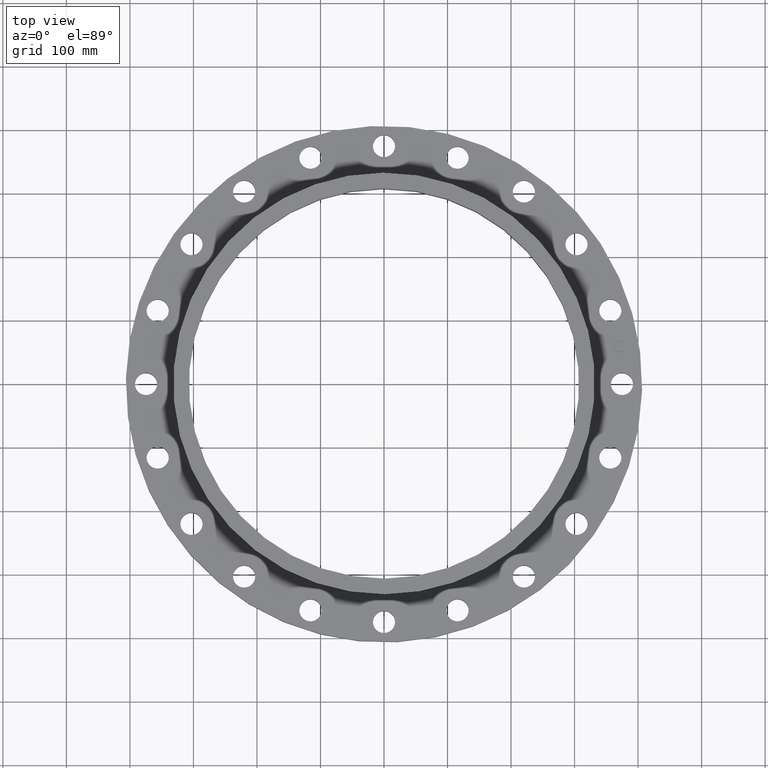
[diagram: clean part render]
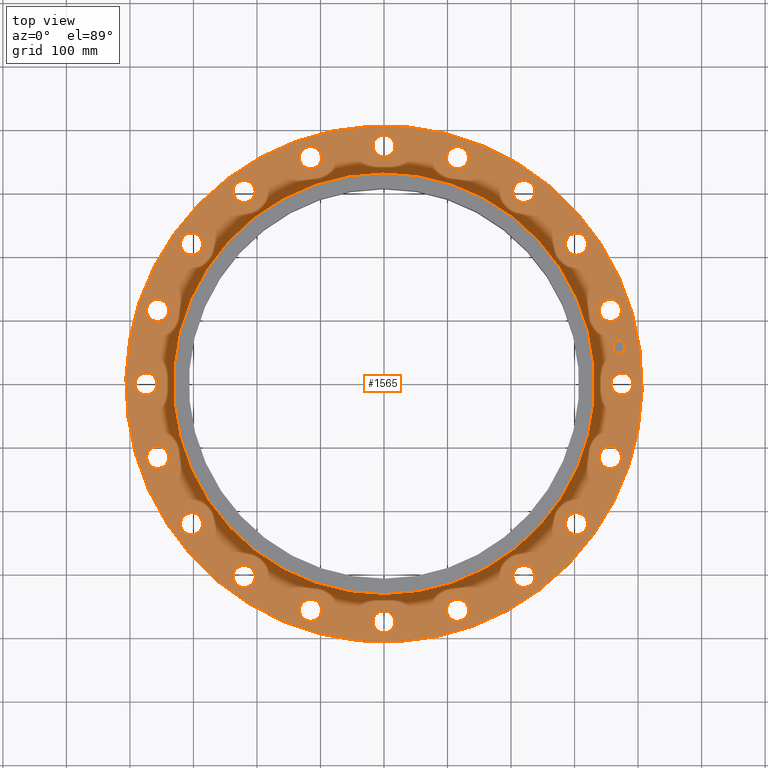
[diagram: same view with one face highlighted and labeled with its STEP entity id]
A machine part, top view. The second image highlights one B-rep face of the part: STEP entity #1565.
In plain terms, the highlighted planar face has unit normal (0, 0, 1).
Its self-contained STEP definition (entity closure, byte-faithful):
#65=AXIS2_PLACEMENT_3D('Circle Axis2P3D',#63,#64,$) ;
#82=AXIS2_PLACEMENT_3D('Circle Axis2P3D',#80,#81,$) ;
#108=AXIS2_PLACEMENT_3D('Circle Axis2P3D',#106,#107,$) ;
#134=AXIS2_PLACEMENT_3D('Circle Axis2P3D',#132,#133,$) ;
#255=AXIS2_PLACEMENT_3D('Circle Axis2P3D',#253,#254,$) ;
#267=AXIS2_PLACEMENT_3D('Circle Axis2P3D',#265,#266,$) ;
#658=AXIS2_PLACEMENT_3D('Circle Axis2P3D',#656,#657,$) ;
#670=AXIS2_PLACEMENT_3D('Circle Axis2P3D',#668,#669,$) ;
#701=AXIS2_PLACEMENT_3D('Circle Axis2P3D',#699,#700,$) ;
#713=AXIS2_PLACEMENT_3D('Circle Axis2P3D',#711,#712,$) ;
#744=AXIS2_PLACEMENT_3D('Circle Axis2P3D',#742,#743,$) ;
#756=AXIS2_PLACEMENT_3D('Circle Axis2P3D',#754,#755,$) ;
#787=AXIS2_PLACEMENT_3D('Circle Axis2P3D',#785,#786,$) ;
#799=AXIS2_PLACEMENT_3D('Circle Axis2P3D',#797,#798,$) ;
#830=AXIS2_PLACEMENT_3D('Circle Axis2P3D',#828,#829,$) ;
#842=AXIS2_PLACEMENT_3D('Circle Axis2P3D',#840,#841,$) ;
#873=AXIS2_PLACEMENT_3D('Circle Axis2P3D',#871,#872,$) ;
#885=AXIS2_PLACEMENT_3D('Circle Axis2P3D',#883,#884,$) ;
#916=AXIS2_PLACEMENT_3D('Circle Axis2P3D',#914,#915,$) ;
#928=AXIS2_PLACEMENT_3D('Circle Axis2P3D',#926,#927,$) ;
#959=AXIS2_PLACEMENT_3D('Circle Axis2P3D',#957,#958,$) ;
#971=AXIS2_PLACEMENT_3D('Circle Axis2P3D',#969,#970,$) ;
#1002=AXIS2_PLACEMENT_3D('Circle Axis2P3D',#1000,#1001,$) ;
#1014=AXIS2_PLACEMENT_3D('Circle Axis2P3D',#1012,#1013,$) ;
#1045=AXIS2_PLACEMENT_3D('Circle Axis2P3D',#1043,#1044,$) ;
#1057=AXIS2_PLACEMENT_3D('Circle Axis2P3D',#1055,#1056,$) ;
#1088=AXIS2_PLACEMENT_3D('Circle Axis2P3D',#1086,#1087,$) ;
#1100=AXIS2_PLACEMENT_3D('Circle Axis2P3D',#1098,#1099,$) ;
#1131=AXIS2_PLACEMENT_3D('Circle Axis2P3D',#1129,#1130,$) ;
#1143=AXIS2_PLACEMENT_3D('Circle Axis2P3D',#1141,#1142,$) ;
#1174=AXIS2_PLACEMENT_3D('Circle Axis2P3D',#1172,#1173,$) ;
#1186=AXIS2_PLACEMENT_3D('Circle Axis2P3D',#1184,#1185,$) ;
#1217=AXIS2_PLACEMENT_3D('Circle Axis2P3D',#1215,#1216,$) ;
#1229=AXIS2_PLACEMENT_3D('Circle Axis2P3D',#1227,#1228,$) ;
#1260=AXIS2_PLACEMENT_3D('Circle Axis2P3D',#1258,#1259,$) ;
#1272=AXIS2_PLACEMENT_3D('Circle Axis2P3D',#1270,#1271,$) ;
#1303=AXIS2_PLACEMENT_3D('Circle Axis2P3D',#1301,#1302,$) ;
#1315=AXIS2_PLACEMENT_3D('Circle Axis2P3D',#1313,#1314,$) ;
#1346=AXIS2_PLACEMENT_3D('Circle Axis2P3D',#1344,#1345,$) ;
#1358=AXIS2_PLACEMENT_3D('Circle Axis2P3D',#1356,#1357,$) ;
#1389=AXIS2_PLACEMENT_3D('Circle Axis2P3D',#1387,#1388,$) ;
#1401=AXIS2_PLACEMENT_3D('Circle Axis2P3D',#1399,#1400,$) ;
#1432=AXIS2_PLACEMENT_3D('Circle Axis2P3D',#1430,#1431,$) ;
#1444=AXIS2_PLACEMENT_3D('Circle Axis2P3D',#1442,#1443,$) ;
#1457=AXIS2_PLACEMENT_3D('Plane Axis2P3D',#1454,#1455,#1456) ;
#1549=AXIS2_PLACEMENT_3D('Circle Axis2P3D',#1547,#1548,$) ;
#1558=AXIS2_PLACEMENT_3D('Circle Axis2P3D',#1556,#1557,$) ;
#46=CARTESIAN_POINT('Vertex',(14.1466619888,0.329605057792,1.87500000001)) ;
#60=CARTESIAN_POINT('Vertex',(15.3533380114,-0.329605057792,1.87500000001)) ;
#63=CARTESIAN_POINT('Axis2P3D Location',(14.7500000001,0.,1.87500000001)) ;
#80=CARTESIAN_POINT('Axis2P3D Location',(14.7500000001,0.,1.87500000001)) ;
#103=CARTESIAN_POINT('Vertex',(-7.6708086177,14.0413209903,1.87500000001)) ;
#106=CARTESIAN_POINT('Axis2P3D Location',(0.,0.,1.87500000001)) ;
#110=CARTESIAN_POINT('Vertex',(7.6708086177,-14.0413209903,1.87500000001)) ;
#132=CARTESIAN_POINT('Axis2P3D Location',(0.,0.,1.87500000001)) ;
#243=CARTESIAN_POINT('Vertex',(-6.26249609804,11.4634222147,1.87500000001)) ;
#250=CARTESIAN_POINT('Vertex',(6.26249609804,-11.4634222147,1.87500000001)) ;
#253=CARTESIAN_POINT('Axis2P3D Location',(0.,0.,1.87500000001)) ;
#265=CARTESIAN_POINT('Axis2P3D Location',(0.,0.,1.87500000001)) ;
#646=CARTESIAN_POINT('Vertex',(13.3524215039,4.68503200622,1.87500000001)) ;
#653=CARTESIAN_POINT('Vertex',(14.7037457269,4.43096932788,1.87500000001)) ;
#656=CARTESIAN_POINT('Axis2P3D Location',(14.0280836154,4.55800066705,1.87500000001)) ;
#668=CARTESIAN_POINT('Axis2P3D Location',(14.0280836154,4.55800066705,1.87500000001)) ;
#689=CARTESIAN_POINT('Vertex',(11.2511529705,8.58185537934,1.87500000001)) ;
#696=CARTESIAN_POINT('Vertex',(12.6148483636,8.75780956335,1.87500000001)) ;
#699=CARTESIAN_POINT('Axis2P3D Location',(11.9330006671,8.66983247135,1.87500000001)) ;
#711=CARTESIAN_POINT('Axis2P3D Location',(11.9330006671,8.66983247135,1.87500000001)) ;
#732=CARTESIAN_POINT('Vertex',(8.04854319297,11.6386269546,1.87500000001)) ;
#739=CARTESIAN_POINT('Vertex',(9.29112174972,12.2273743795,1.87500000001)) ;
#742=CARTESIAN_POINT('Axis2P3D Location',(8.66983247135,11.9330006671,1.87500000001)) ;
#754=CARTESIAN_POINT('Axis2P3D Location',(8.66983247135,11.9330006671,1.87500000001)) ;
#775=CARTESIAN_POINT('Vertex',(4.05808593019,13.5561286325,1.87500000001)) ;
#782=CARTESIAN_POINT('Vertex',(5.05791540391,14.5000385983,1.87500000001)) ;
#785=CARTESIAN_POINT('Axis2P3D Location',(4.55800066705,14.0280836154,1.87500000001)) ;
#797=CARTESIAN_POINT('Axis2P3D Location',(4.55800066705,14.0280836154,1.87500000001)) ;
#818=CARTESIAN_POINT('Vertex',(-0.329605057792,14.1466619888,1.87500000001)) ;
#825=CARTESIAN_POINT('Vertex',(0.329605057792,15.3533380114,1.87500000001)) ;
#828=CARTESIAN_POINT('Axis2P3D Location',(4.17833493703E-015,14.7500000001,1.87500000001)) ;
#840=CARTESIAN_POINT('Axis2P3D Location',(4.17833493703E-015,14.7500000001,1.87500000001)) ;
#861=CARTESIAN_POINT('Vertex',(-4.68503200622,13.3524215039,1.87500000001)) ;
#868=CARTESIAN_POINT('Vertex',(-4.43096932788,14.7037457269,1.87500000001)) ;
#871=CARTESIAN_POINT('Axis2P3D Location',(-4.55800066705,14.0280836154,1.87500000001)) ;
#883=CARTESIAN_POINT('Axis2P3D Location',(-4.55800066705,14.0280836154,1.87500000001)) ;
#904=CARTESIAN_POINT('Vertex',(-8.58185537934,11.2511529705,1.87500000001)) ;
#911=CARTESIAN_POINT('Vertex',(-8.75780956335,12.6148483636,1.87500000001)) ;
#914=CARTESIAN_POINT('Axis2P3D Location',(-8.66983247135,11.9330006671,1.87500000001)) ;
#926=CARTESIAN_POINT('Axis2P3D Location',(-8.66983247135,11.9330006671,1.87500000001)) ;
#947=CARTESIAN_POINT('Vertex',(-11.6386269546,8.04854319297,1.87500000001)) ;
#954=CARTESIAN_POINT('Vertex',(-12.2273743795,9.29112174972,1.87500000001)) ;
#957=CARTESIAN_POINT('Axis2P3D Location',(-11.9330006671,8.66983247135,1.87500000001)) ;
#969=CARTESIAN_POINT('Axis2P3D Location',(-11.9330006671,8.66983247135,1.87500000001)) ;
#990=CARTESIAN_POINT('Vertex',(-13.5561286325,4.05808593019,1.87500000001)) ;
#997=CARTESIAN_POINT('Vertex',(-14.5000385983,5.05791540391,1.87500000001)) ;
#1000=CARTESIAN_POINT('Axis2P3D Location',(-14.0280836154,4.55800066705,1.87500000001)) ;
#1012=CARTESIAN_POINT('Axis2P3D Location',(-14.0280836154,4.55800066705,1.87500000001)) ;
#1033=CARTESIAN_POINT('Vertex',(-14.1466619888,-0.329605057792,1.87500000001)) ;
#1040=CARTESIAN_POINT('Vertex',(-15.3533380114,0.329605057792,1.87500000001)) ;
#1043=CARTESIAN_POINT('Axis2P3D Location',(-14.7500000001,8.35666987406E-015,1.87500000001)) ;
#1055=CARTESIAN_POINT('Axis2P3D Location',(-14.7500000001,8.35666987406E-015,1.87500000001)) ;
#1076=CARTESIAN_POINT('Vertex',(-13.3524215039,-4.68503200622,1.87500000001)) ;
#1083=CARTESIAN_POINT('Vertex',(-14.7037457269,-4.43096932788,1.87500000001)) ;
#1086=CARTESIAN_POINT('Axis2P3D Location',(-14.0280836154,-4.55800066705,1.87500000001)) ;
#1098=CARTESIAN_POINT('Axis2P3D Location',(-14.0280836154,-4.55800066705,1.87500000001)) ;
#1119=CARTESIAN_POINT('Vertex',(-11.2511529705,-8.58185537934,1.87500000001)) ;
#1126=CARTESIAN_POINT('Vertex',(-12.6148483636,-8.75780956335,1.87500000001)) ;
#1129=CARTESIAN_POINT('Axis2P3D Location',(-11.9330006671,-8.66983247135,1.87500000001)) ;
#1141=CARTESIAN_POINT('Axis2P3D Location',(-11.9330006671,-8.66983247135,1.87500000001)) ;
#1162=CARTESIAN_POINT('Vertex',(-8.04854319297,-11.6386269546,1.87500000001)) ;
#1169=CARTESIAN_POINT('Vertex',(-9.29112174972,-12.2273743795,1.87500000001)) ;
#1172=CARTESIAN_POINT('Axis2P3D Location',(-8.66983247135,-11.9330006671,1.87500000001)) ;
#1184=CARTESIAN_POINT('Axis2P3D Location',(-8.66983247135,-11.9330006671,1.87500000001)) ;
#1205=CARTESIAN_POINT('Vertex',(-4.05808593019,-13.5561286325,1.87500000001)) ;
#1212=CARTESIAN_POINT('Vertex',(-5.05791540391,-14.5000385983,1.87500000001)) ;
#1215=CARTESIAN_POINT('Axis2P3D Location',(-4.55800066705,-14.0280836154,1.87500000001)) ;
#1227=CARTESIAN_POINT('Axis2P3D Location',(-4.55800066705,-14.0280836154,1.87500000001)) ;
#1248=CARTESIAN_POINT('Vertex',(0.329605057792,-14.1466619888,1.87500000001)) ;
#1255=CARTESIAN_POINT('Vertex',(-0.329605057792,-15.3533380114,1.87500000001)) ;
#1258=CARTESIAN_POINT('Axis2P3D Location',(-1.58101627338E-014,-14.7500000001,1.87500000001)) ;
#1270=CARTESIAN_POINT('Axis2P3D Location',(-1.58101627338E-014,-14.7500000001,1.87500000001)) ;
#1291=CARTESIAN_POINT('Vertex',(4.68503200622,-13.3524215039,1.87500000001)) ;
#1298=CARTESIAN_POINT('Vertex',(4.43096932788,-14.7037457269,1.87500000001)) ;
#1301=CARTESIAN_POINT('Axis2P3D Location',(4.55800066705,-14.0280836154,1.87500000001)) ;
#1313=CARTESIAN_POINT('Axis2P3D Location',(4.55800066705,-14.0280836154,1.87500000001)) ;
#1334=CARTESIAN_POINT('Vertex',(8.58185537934,-11.2511529705,1.87500000001)) ;
#1341=CARTESIAN_POINT('Vertex',(8.75780956335,-12.6148483636,1.87500000001)) ;
#1344=CARTESIAN_POINT('Axis2P3D Location',(8.66983247135,-11.9330006671,1.87500000001)) ;
#1356=CARTESIAN_POINT('Axis2P3D Location',(8.66983247135,-11.9330006671,1.87500000001)) ;
#1377=CARTESIAN_POINT('Vertex',(11.6386269546,-8.04854319297,1.87500000001)) ;
#1384=CARTESIAN_POINT('Vertex',(12.2273743795,-9.29112174972,1.87500000001)) ;
#1387=CARTESIAN_POINT('Axis2P3D Location',(11.9330006671,-8.66983247135,1.87500000001)) ;
#1399=CARTESIAN_POINT('Axis2P3D Location',(11.9330006671,-8.66983247135,1.87500000001)) ;
#1420=CARTESIAN_POINT('Vertex',(13.5561286325,-4.05808593019,1.87500000001)) ;
#1427=CARTESIAN_POINT('Vertex',(14.5000385983,-5.05791540391,1.87500000001)) ;
#1430=CARTESIAN_POINT('Axis2P3D Location',(14.0280836154,-4.55800066705,1.87500000001)) ;
#1442=CARTESIAN_POINT('Axis2P3D Location',(14.0280836154,-4.55800066705,1.87500000001)) ;
#1454=CARTESIAN_POINT('Axis2P3D Location',(0.,13.0625000001,1.87500000001)) ;
#1547=CARTESIAN_POINT('Axis2P3D Location',(14.5684030238,2.30740835935,1.87500000001)) ;
#1551=CARTESIAN_POINT('Vertex',(14.5097400994,2.67779148708,1.87500000001)) ;
#1553=CARTESIAN_POINT('Vertex',(14.6270659482,1.93702523163,1.87500000001)) ;
#1556=CARTESIAN_POINT('Axis2P3D Location',(14.5684030238,2.30740835935,1.87500000001)) ;
#64=DIRECTION('Axis2P3D Direction',(0.,-0.,-0.0393700787402)) ;
#81=DIRECTION('Axis2P3D Direction',(0.,-0.,-0.0393700787402)) ;
#107=DIRECTION('Axis2P3D Direction',(0.,0.,0.0393700787402)) ;
#133=DIRECTION('Axis2P3D Direction',(0.,0.,0.0393700787402)) ;
#254=DIRECTION('Axis2P3D Direction',(0.,0.,0.0393700787402)) ;
#266=DIRECTION('Axis2P3D Direction',(0.,0.,0.0393700787402)) ;
#657=DIRECTION('Axis2P3D Direction',(0.,0.,-0.0393700787402)) ;
#669=DIRECTION('Axis2P3D Direction',(0.,0.,-0.0393700787402)) ;
#700=DIRECTION('Axis2P3D Direction',(0.,0.,-0.0393700787402)) ;
#712=DIRECTION('Axis2P3D Direction',(0.,0.,-0.0393700787402)) ;
#743=DIRECTION('Axis2P3D Direction',(0.,0.,-0.0393700787402)) ;
#755=DIRECTION('Axis2P3D Direction',(0.,0.,-0.0393700787402)) ;
#786=DIRECTION('Axis2P3D Direction',(0.,0.,-0.0393700787402)) ;
#798=DIRECTION('Axis2P3D Direction',(0.,0.,-0.0393700787402)) ;
#829=DIRECTION('Axis2P3D Direction',(0.,0.,-0.0393700787402)) ;
#841=DIRECTION('Axis2P3D Direction',(0.,0.,-0.0393700787402)) ;
#872=DIRECTION('Axis2P3D Direction',(0.,0.,-0.0393700787402)) ;
#884=DIRECTION('Axis2P3D Direction',(0.,0.,-0.0393700787402)) ;
#915=DIRECTION('Axis2P3D Direction',(0.,0.,-0.0393700787402)) ;
#927=DIRECTION('Axis2P3D Direction',(0.,0.,-0.0393700787402)) ;
#958=DIRECTION('Axis2P3D Direction',(0.,0.,-0.0393700787402)) ;
#970=DIRECTION('Axis2P3D Direction',(0.,0.,-0.0393700787402)) ;
#1001=DIRECTION('Axis2P3D Direction',(0.,0.,-0.0393700787402)) ;
#1013=DIRECTION('Axis2P3D Direction',(0.,0.,-0.0393700787402)) ;
#1044=DIRECTION('Axis2P3D Direction',(0.,0.,-0.0393700787402)) ;
#1056=DIRECTION('Axis2P3D Direction',(0.,0.,-0.0393700787402)) ;
#1087=DIRECTION('Axis2P3D Direction',(-0.,0.,-0.0393700787402)) ;
#1099=DIRECTION('Axis2P3D Direction',(-0.,0.,-0.0393700787402)) ;
#1130=DIRECTION('Axis2P3D Direction',(-0.,0.,-0.0393700787402)) ;
#1142=DIRECTION('Axis2P3D Direction',(-0.,0.,-0.0393700787402)) ;
#1173=DIRECTION('Axis2P3D Direction',(-0.,0.,-0.0393700787402)) ;
#1185=DIRECTION('Axis2P3D Direction',(-0.,0.,-0.0393700787402)) ;
#1216=DIRECTION('Axis2P3D Direction',(-0.,0.,-0.0393700787402)) ;
#1228=DIRECTION('Axis2P3D Direction',(-0.,0.,-0.0393700787402)) ;
#1259=DIRECTION('Axis2P3D Direction',(-0.,0.,-0.0393700787402)) ;
#1271=DIRECTION('Axis2P3D Direction',(-0.,0.,-0.0393700787402)) ;
#1302=DIRECTION('Axis2P3D Direction',(0.,-0.,-0.0393700787402)) ;
#1314=DIRECTION('Axis2P3D Direction',(0.,-0.,-0.0393700787402)) ;
#1345=DIRECTION('Axis2P3D Direction',(0.,-0.,-0.0393700787402)) ;
#1357=DIRECTION('Axis2P3D Direction',(0.,-0.,-0.0393700787402)) ;
#1388=DIRECTION('Axis2P3D Direction',(0.,-0.,-0.0393700787402)) ;
#1400=DIRECTION('Axis2P3D Direction',(0.,-0.,-0.0393700787402)) ;
#1431=DIRECTION('Axis2P3D Direction',(0.,-0.,-0.0393700787402)) ;
#1443=DIRECTION('Axis2P3D Direction',(0.,-0.,-0.0393700787402)) ;
#1455=DIRECTION('Axis2P3D Direction',(0.,0.,0.0393700787402)) ;
#1456=DIRECTION('Axis2P3D XDirection',(0.0393700787402,0.,0.)) ;
#1548=DIRECTION('Axis2P3D Direction',(0.,0.,0.0393700787402)) ;
#1557=DIRECTION('Axis2P3D Direction',(0.,0.,0.0393700787402)) ;
#1460=ORIENTED_EDGE('',*,*,#112,.T.) ;
#1461=ORIENTED_EDGE('',*,*,#136,.T.) ;
#1464=ORIENTED_EDGE('',*,*,#84,.F.) ;
#1465=ORIENTED_EDGE('',*,*,#67,.F.) ;
#1468=ORIENTED_EDGE('',*,*,#269,.F.) ;
#1469=ORIENTED_EDGE('',*,*,#257,.F.) ;
#1472=ORIENTED_EDGE('',*,*,#660,.F.) ;
#1473=ORIENTED_EDGE('',*,*,#672,.F.) ;
#1476=ORIENTED_EDGE('',*,*,#703,.F.) ;
#1477=ORIENTED_EDGE('',*,*,#715,.F.) ;
#1480=ORIENTED_EDGE('',*,*,#746,.F.) ;
#1481=ORIENTED_EDGE('',*,*,#758,.F.) ;
#1484=ORIENTED_EDGE('',*,*,#789,.F.) ;
#1485=ORIENTED_EDGE('',*,*,#801,.F.) ;
#1488=ORIENTED_EDGE('',*,*,#832,.F.) ;
#1489=ORIENTED_EDGE('',*,*,#844,.F.) ;
#1492=ORIENTED_EDGE('',*,*,#875,.F.) ;
#1493=ORIENTED_EDGE('',*,*,#887,.F.) ;
#1496=ORIENTED_EDGE('',*,*,#918,.F.) ;
#1497=ORIENTED_EDGE('',*,*,#930,.F.) ;
#1500=ORIENTED_EDGE('',*,*,#961,.F.) ;
#1501=ORIENTED_EDGE('',*,*,#973,.F.) ;
#1504=ORIENTED_EDGE('',*,*,#1004,.F.) ;
#1505=ORIENTED_EDGE('',*,*,#1016,.F.) ;
#1508=ORIENTED_EDGE('',*,*,#1047,.F.) ;
#1509=ORIENTED_EDGE('',*,*,#1059,.F.) ;
#1512=ORIENTED_EDGE('',*,*,#1090,.F.) ;
#1513=ORIENTED_EDGE('',*,*,#1102,.F.) ;
#1516=ORIENTED_EDGE('',*,*,#1133,.F.) ;
#1517=ORIENTED_EDGE('',*,*,#1145,.F.) ;
#1520=ORIENTED_EDGE('',*,*,#1176,.F.) ;
#1521=ORIENTED_EDGE('',*,*,#1188,.F.) ;
#1524=ORIENTED_EDGE('',*,*,#1219,.F.) ;
#1525=ORIENTED_EDGE('',*,*,#1231,.F.) ;
#1528=ORIENTED_EDGE('',*,*,#1262,.F.) ;
#1529=ORIENTED_EDGE('',*,*,#1274,.F.) ;
#1532=ORIENTED_EDGE('',*,*,#1305,.F.) ;
#1533=ORIENTED_EDGE('',*,*,#1317,.F.) ;
#1536=ORIENTED_EDGE('',*,*,#1348,.F.) ;
#1537=ORIENTED_EDGE('',*,*,#1360,.F.) ;
#1540=ORIENTED_EDGE('',*,*,#1391,.F.) ;
#1541=ORIENTED_EDGE('',*,*,#1403,.F.) ;
#1544=ORIENTED_EDGE('',*,*,#1434,.F.) ;
#1545=ORIENTED_EDGE('',*,*,#1446,.F.) ;
#1562=ORIENTED_EDGE('',*,*,#1555,.F.) ;
#1563=ORIENTED_EDGE('',*,*,#1560,.F.) ;
#1466=FACE_BOUND('',#1463,.T.) ;
#1470=FACE_BOUND('',#1467,.T.) ;
#1474=FACE_BOUND('',#1471,.T.) ;
#1478=FACE_BOUND('',#1475,.T.) ;
#1482=FACE_BOUND('',#1479,.T.) ;
#1486=FACE_BOUND('',#1483,.T.) ;
#1490=FACE_BOUND('',#1487,.T.) ;
#1494=FACE_BOUND('',#1491,.T.) ;
#1498=FACE_BOUND('',#1495,.T.) ;
#1502=FACE_BOUND('',#1499,.T.) ;
#1506=FACE_BOUND('',#1503,.T.) ;
#1510=FACE_BOUND('',#1507,.T.) ;
#1514=FACE_BOUND('',#1511,.T.) ;
#1518=FACE_BOUND('',#1515,.T.) ;
#1522=FACE_BOUND('',#1519,.T.) ;
#1526=FACE_BOUND('',#1523,.T.) ;
#1530=FACE_BOUND('',#1527,.T.) ;
#1534=FACE_BOUND('',#1531,.T.) ;
#1538=FACE_BOUND('',#1535,.T.) ;
#1542=FACE_BOUND('',#1539,.T.) ;
#1546=FACE_BOUND('',#1543,.T.) ;
#1564=FACE_BOUND('',#1561,.T.) ;
#1565=ADVANCED_FACE('PartBody',(#1462,#1466,#1470,#1474,#1478,#1482,#1486,#1490,#1494,#1498,#1502,#1506,#1510,#1514,#1518,#1522,#1526,#1530,#1534,#1538,#1542,#1546,#1564),#1458,.T.) ;
#66=CIRCLE('generated circle',#65,0.687500000003) ;
#83=CIRCLE('generated circle',#82,0.687500000003) ;
#109=CIRCLE('generated circle',#108,16.0000000001) ;
#135=CIRCLE('generated circle',#134,16.0000000001) ;
#256=CIRCLE('generated circle',#255,13.0625000001) ;
#268=CIRCLE('generated circle',#267,13.0625000001) ;
#659=CIRCLE('generated circle',#658,0.687500000003) ;
#671=CIRCLE('generated circle',#670,0.687500000003) ;
#702=CIRCLE('generated circle',#701,0.687500000003) ;
#714=CIRCLE('generated circle',#713,0.687500000003) ;
#745=CIRCLE('generated circle',#744,0.687500000003) ;
#757=CIRCLE('generated circle',#756,0.687500000003) ;
#788=CIRCLE('generated circle',#787,0.687500000003) ;
#800=CIRCLE('generated circle',#799,0.687500000003) ;
#831=CIRCLE('generated circle',#830,0.687500000003) ;
#843=CIRCLE('generated circle',#842,0.687500000003) ;
#874=CIRCLE('generated circle',#873,0.687500000003) ;
#886=CIRCLE('generated circle',#885,0.687500000003) ;
#917=CIRCLE('generated circle',#916,0.687500000003) ;
#929=CIRCLE('generated circle',#928,0.687500000003) ;
#960=CIRCLE('generated circle',#959,0.687500000003) ;
#972=CIRCLE('generated circle',#971,0.687500000003) ;
#1003=CIRCLE('generated circle',#1002,0.687500000003) ;
#1015=CIRCLE('generated circle',#1014,0.687500000003) ;
#1046=CIRCLE('generated circle',#1045,0.687500000003) ;
#1058=CIRCLE('generated circle',#1057,0.687500000003) ;
#1089=CIRCLE('generated circle',#1088,0.687500000003) ;
#1101=CIRCLE('generated circle',#1100,0.687500000003) ;
#1132=CIRCLE('generated circle',#1131,0.687500000003) ;
#1144=CIRCLE('generated circle',#1143,0.687500000003) ;
#1175=CIRCLE('generated circle',#1174,0.687500000003) ;
#1187=CIRCLE('generated circle',#1186,0.687500000003) ;
#1218=CIRCLE('generated circle',#1217,0.687500000003) ;
#1230=CIRCLE('generated circle',#1229,0.687500000003) ;
#1261=CIRCLE('generated circle',#1260,0.687500000003) ;
#1273=CIRCLE('generated circle',#1272,0.687500000003) ;
#1304=CIRCLE('generated circle',#1303,0.687500000003) ;
#1316=CIRCLE('generated circle',#1315,0.687500000003) ;
#1347=CIRCLE('generated circle',#1346,0.687500000003) ;
#1359=CIRCLE('generated circle',#1358,0.687500000003) ;
#1390=CIRCLE('generated circle',#1389,0.687500000003) ;
#1402=CIRCLE('generated circle',#1401,0.687500000003) ;
#1433=CIRCLE('generated circle',#1432,0.687500000003) ;
#1445=CIRCLE('generated circle',#1444,0.687500000003) ;
#1550=CIRCLE('generated circle',#1549,0.375000000002) ;
#1559=CIRCLE('generated circle',#1558,0.375000000002) ;
#67=EDGE_CURVE('',#61,#47,#66,.F.) ;
#84=EDGE_CURVE('',#47,#61,#83,.F.) ;
#112=EDGE_CURVE('',#111,#104,#109,.T.) ;
#136=EDGE_CURVE('',#104,#111,#135,.T.) ;
#257=EDGE_CURVE('',#251,#244,#256,.T.) ;
#269=EDGE_CURVE('',#244,#251,#268,.T.) ;
#660=EDGE_CURVE('',#654,#647,#659,.F.) ;
#672=EDGE_CURVE('',#647,#654,#671,.F.) ;
#703=EDGE_CURVE('',#697,#690,#702,.F.) ;
#715=EDGE_CURVE('',#690,#697,#714,.F.) ;
#746=EDGE_CURVE('',#740,#733,#745,.F.) ;
#758=EDGE_CURVE('',#733,#740,#757,.F.) ;
#789=EDGE_CURVE('',#783,#776,#788,.F.) ;
#801=EDGE_CURVE('',#776,#783,#800,.F.) ;
#832=EDGE_CURVE('',#826,#819,#831,.F.) ;
#844=EDGE_CURVE('',#819,#826,#843,.F.) ;
#875=EDGE_CURVE('',#869,#862,#874,.F.) ;
#887=EDGE_CURVE('',#862,#869,#886,.F.) ;
#918=EDGE_CURVE('',#912,#905,#917,.F.) ;
#930=EDGE_CURVE('',#905,#912,#929,.F.) ;
#961=EDGE_CURVE('',#955,#948,#960,.F.) ;
#973=EDGE_CURVE('',#948,#955,#972,.F.) ;
#1004=EDGE_CURVE('',#998,#991,#1003,.F.) ;
#1016=EDGE_CURVE('',#991,#998,#1015,.F.) ;
#1047=EDGE_CURVE('',#1041,#1034,#1046,.F.) ;
#1059=EDGE_CURVE('',#1034,#1041,#1058,.F.) ;
#1090=EDGE_CURVE('',#1084,#1077,#1089,.F.) ;
#1102=EDGE_CURVE('',#1077,#1084,#1101,.F.) ;
#1133=EDGE_CURVE('',#1127,#1120,#1132,.F.) ;
#1145=EDGE_CURVE('',#1120,#1127,#1144,.F.) ;
#1176=EDGE_CURVE('',#1170,#1163,#1175,.F.) ;
#1188=EDGE_CURVE('',#1163,#1170,#1187,.F.) ;
#1219=EDGE_CURVE('',#1213,#1206,#1218,.F.) ;
#1231=EDGE_CURVE('',#1206,#1213,#1230,.F.) ;
#1262=EDGE_CURVE('',#1256,#1249,#1261,.F.) ;
#1274=EDGE_CURVE('',#1249,#1256,#1273,.F.) ;
#1305=EDGE_CURVE('',#1299,#1292,#1304,.F.) ;
#1317=EDGE_CURVE('',#1292,#1299,#1316,.F.) ;
#1348=EDGE_CURVE('',#1342,#1335,#1347,.F.) ;
#1360=EDGE_CURVE('',#1335,#1342,#1359,.F.) ;
#1391=EDGE_CURVE('',#1385,#1378,#1390,.F.) ;
#1403=EDGE_CURVE('',#1378,#1385,#1402,.F.) ;
#1434=EDGE_CURVE('',#1428,#1421,#1433,.F.) ;
#1446=EDGE_CURVE('',#1421,#1428,#1445,.F.) ;
#1555=EDGE_CURVE('',#1552,#1554,#1550,.T.) ;
#1560=EDGE_CURVE('',#1554,#1552,#1559,.T.) ;
#1459=EDGE_LOOP('',(#1460,#1461)) ;
#1463=EDGE_LOOP('',(#1464,#1465)) ;
#1467=EDGE_LOOP('',(#1468,#1469)) ;
#1471=EDGE_LOOP('',(#1472,#1473)) ;
#1475=EDGE_LOOP('',(#1476,#1477)) ;
#1479=EDGE_LOOP('',(#1480,#1481)) ;
#1483=EDGE_LOOP('',(#1484,#1485)) ;
#1487=EDGE_LOOP('',(#1488,#1489)) ;
#1491=EDGE_LOOP('',(#1492,#1493)) ;
#1495=EDGE_LOOP('',(#1496,#1497)) ;
#1499=EDGE_LOOP('',(#1500,#1501)) ;
#1503=EDGE_LOOP('',(#1504,#1505)) ;
#1507=EDGE_LOOP('',(#1508,#1509)) ;
#1511=EDGE_LOOP('',(#1512,#1513)) ;
#1515=EDGE_LOOP('',(#1516,#1517)) ;
#1519=EDGE_LOOP('',(#1520,#1521)) ;
#1523=EDGE_LOOP('',(#1524,#1525)) ;
#1527=EDGE_LOOP('',(#1528,#1529)) ;
#1531=EDGE_LOOP('',(#1532,#1533)) ;
#1535=EDGE_LOOP('',(#1536,#1537)) ;
#1539=EDGE_LOOP('',(#1540,#1541)) ;
#1543=EDGE_LOOP('',(#1544,#1545)) ;
#1561=EDGE_LOOP('',(#1562,#1563)) ;
#1462=FACE_OUTER_BOUND('',#1459,.T.) ;
#1458=PLANE('',#1457) ;
#47=VERTEX_POINT('',#46) ;
#61=VERTEX_POINT('',#60) ;
#104=VERTEX_POINT('',#103) ;
#111=VERTEX_POINT('',#110) ;
#244=VERTEX_POINT('',#243) ;
#251=VERTEX_POINT('',#250) ;
#647=VERTEX_POINT('',#646) ;
#654=VERTEX_POINT('',#653) ;
#690=VERTEX_POINT('',#689) ;
#697=VERTEX_POINT('',#696) ;
#733=VERTEX_POINT('',#732) ;
#740=VERTEX_POINT('',#739) ;
#776=VERTEX_POINT('',#775) ;
#783=VERTEX_POINT('',#782) ;
#819=VERTEX_POINT('',#818) ;
#826=VERTEX_POINT('',#825) ;
#862=VERTEX_POINT('',#861) ;
#869=VERTEX_POINT('',#868) ;
#905=VERTEX_POINT('',#904) ;
#912=VERTEX_POINT('',#911) ;
#948=VERTEX_POINT('',#947) ;
#955=VERTEX_POINT('',#954) ;
#991=VERTEX_POINT('',#990) ;
#998=VERTEX_POINT('',#997) ;
#1034=VERTEX_POINT('',#1033) ;
#1041=VERTEX_POINT('',#1040) ;
#1077=VERTEX_POINT('',#1076) ;
#1084=VERTEX_POINT('',#1083) ;
#1120=VERTEX_POINT('',#1119) ;
#1127=VERTEX_POINT('',#1126) ;
#1163=VERTEX_POINT('',#1162) ;
#1170=VERTEX_POINT('',#1169) ;
#1206=VERTEX_POINT('',#1205) ;
#1213=VERTEX_POINT('',#1212) ;
#1249=VERTEX_POINT('',#1248) ;
#1256=VERTEX_POINT('',#1255) ;
#1292=VERTEX_POINT('',#1291) ;
#1299=VERTEX_POINT('',#1298) ;
#1335=VERTEX_POINT('',#1334) ;
#1342=VERTEX_POINT('',#1341) ;
#1378=VERTEX_POINT('',#1377) ;
#1385=VERTEX_POINT('',#1384) ;
#1421=VERTEX_POINT('',#1420) ;
#1428=VERTEX_POINT('',#1427) ;
#1552=VERTEX_POINT('',#1551) ;
#1554=VERTEX_POINT('',#1553) ;